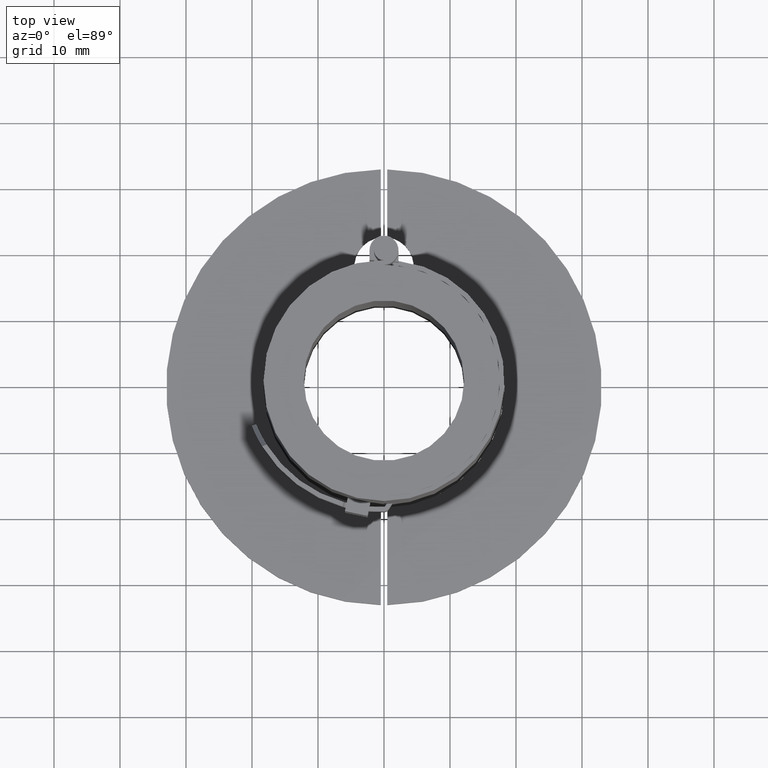
[diagram: clean part render]
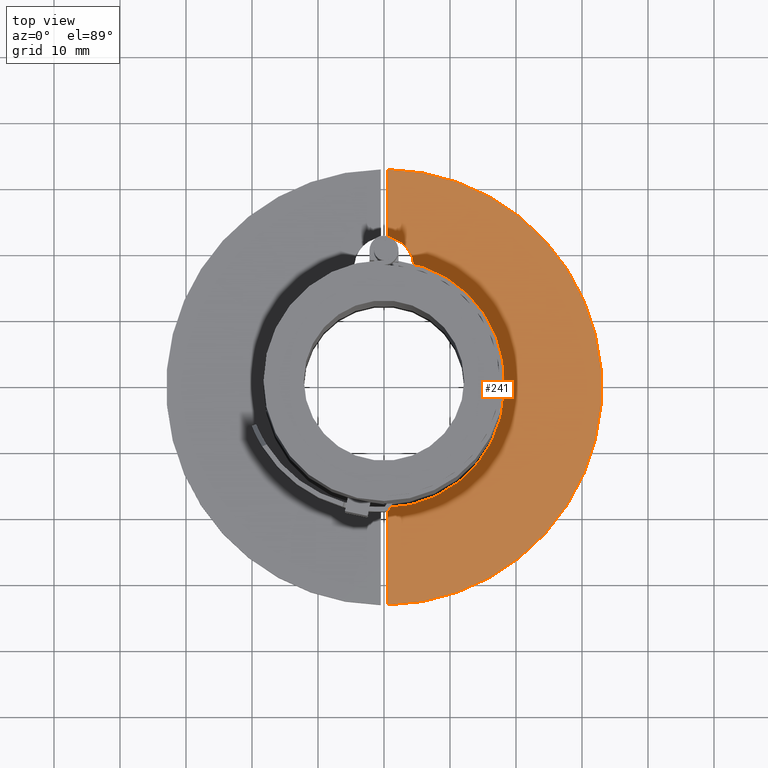
[diagram: same view with one face highlighted and labeled with its STEP entity id]
A machine part, top view. The second image highlights one B-rep face of the part: STEP entity #241.
In plain terms, the highlighted planar face has unit normal (0, 0, 1).
Its self-contained STEP definition (entity closure, byte-faithful):
#73=CARTESIAN_POINT('',(0.5,-18.243149399158032,2.5));
#74=VERTEX_POINT('',#73);
#75=CARTESIAN_POINT('',(4.465669383191056,17.695205479452056,2.5));
#76=VERTEX_POINT('',#75);
#77=CARTESIAN_POINT('',(0.0,0.0,2.5));
#78=DIRECTION('',(0.0,0.0,1.0));
#79=DIRECTION('',(0.027397260273973,-0.999624624611399,0.0));
#80=AXIS2_PLACEMENT_3D('',#77,#78,#79);
#81=CIRCLE('',#80,18.25);
#82=EDGE_CURVE('',#74,#76,#81,.T.);
#115=CARTESIAN_POINT('',(0.5,22.72213595499958,2.5));
#116=VERTEX_POINT('',#115);
#117=CARTESIAN_POINT('',(0.0,18.25,2.5));
#118=DIRECTION('',(0.0,0.0,1.0));
#119=DIRECTION('',(0.992370974042457,-0.123287671232877,0.0));
#120=AXIS2_PLACEMENT_3D('',#117,#118,#119);
#121=CIRCLE('',#120,4.499999999999997);
#122=EDGE_CURVE('',#76,#116,#121,.T.);
#148=CARTESIAN_POINT('',(0.5,32.996211903792833,2.5));
#149=VERTEX_POINT('',#148);
#150=CARTESIAN_POINT('',(0.5,22.72213595499958,2.5));
#151=DIRECTION('',(0.0,1.0,0.0));
#152=VECTOR('',#151,10.274075948793254);
#153=LINE('',#150,#152);
#154=EDGE_CURVE('',#116,#149,#153,.T.);
#179=CARTESIAN_POINT('',(0.5,-32.996211903792833,2.5));
#180=VERTEX_POINT('',#179);
#181=CARTESIAN_POINT('',(0.0,0.0,2.5));
#182=DIRECTION('',(0.0,0.0,-1.0));
#183=DIRECTION('',(-0.015151515151515,0.999885209205843,0.0));
#184=AXIS2_PLACEMENT_3D('',#181,#182,#183);
#185=CIRCLE('',#184,32.999999999999993);
#186=EDGE_CURVE('',#149,#180,#185,.T.);
#212=CARTESIAN_POINT('',(0.5,-32.996211903792833,2.5));
#213=DIRECTION('',(0.0,1.0,0.0));
#214=VECTOR('',#213,14.753062504634805);
#215=LINE('',#212,#214);
#216=EDGE_CURVE('',#180,#74,#215,.T.);
#229=CARTESIAN_POINT('',(13.930608229055208,-0.058355908781799,2.5));
#230=DIRECTION('',(0.0,0.0,1.0));
#231=DIRECTION('',(1.0,0.0,0.0));
#232=AXIS2_PLACEMENT_3D('',#229,#230,#231);
#233=PLANE('',#232);
#234=ORIENTED_EDGE('',*,*,#82,.F.);
#235=ORIENTED_EDGE('',*,*,#216,.F.);
#236=ORIENTED_EDGE('',*,*,#186,.F.);
#237=ORIENTED_EDGE('',*,*,#154,.F.);
#238=ORIENTED_EDGE('',*,*,#122,.F.);
#239=EDGE_LOOP('',(#234,#235,#236,#237,#238));
#240=FACE_OUTER_BOUND('',#239,.T.);
#241=ADVANCED_FACE('',(#240),#233,.T.);